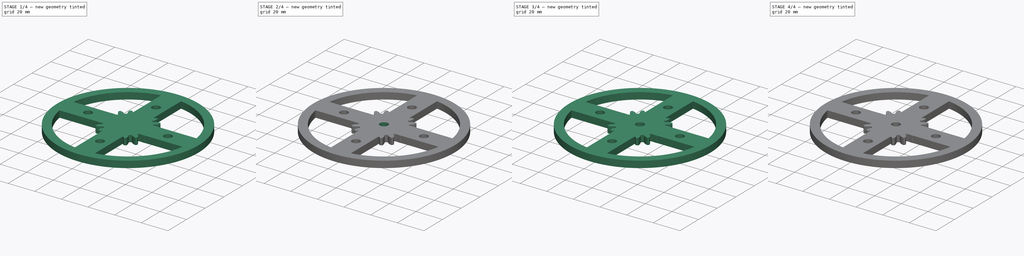
[diagram: build sequence overview — one tinted view per stage of 4, left to right]
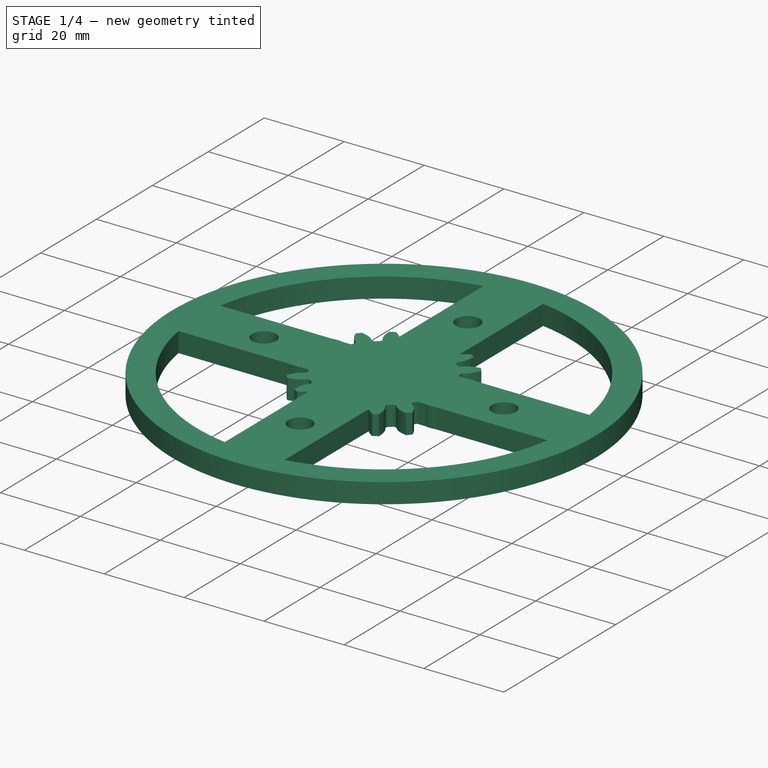
[diagram: stage 1 of 4 — iso view after this stage's code; geometry added in this stage tinted green]
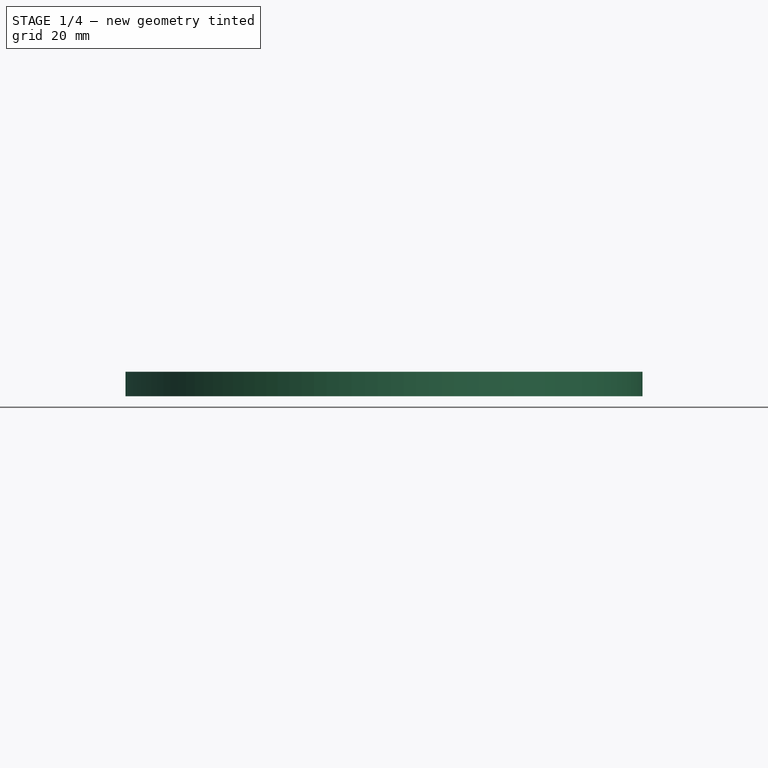
[diagram: stage 1 of 4 — front view after this stage's code; geometry added in this stage tinted green]
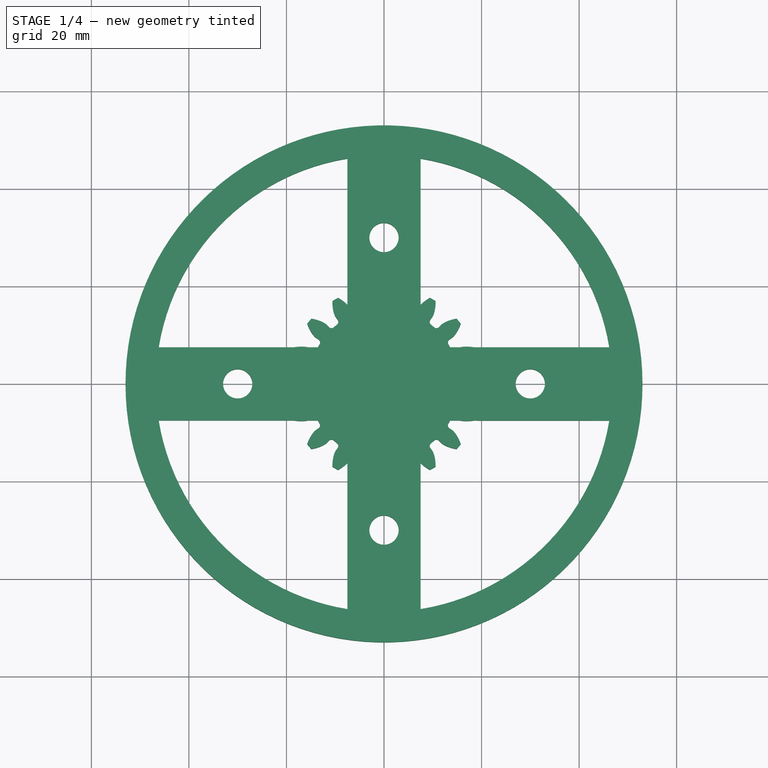
[diagram: stage 1 of 4 — top view after this stage's code; geometry added in this stage tinted green]
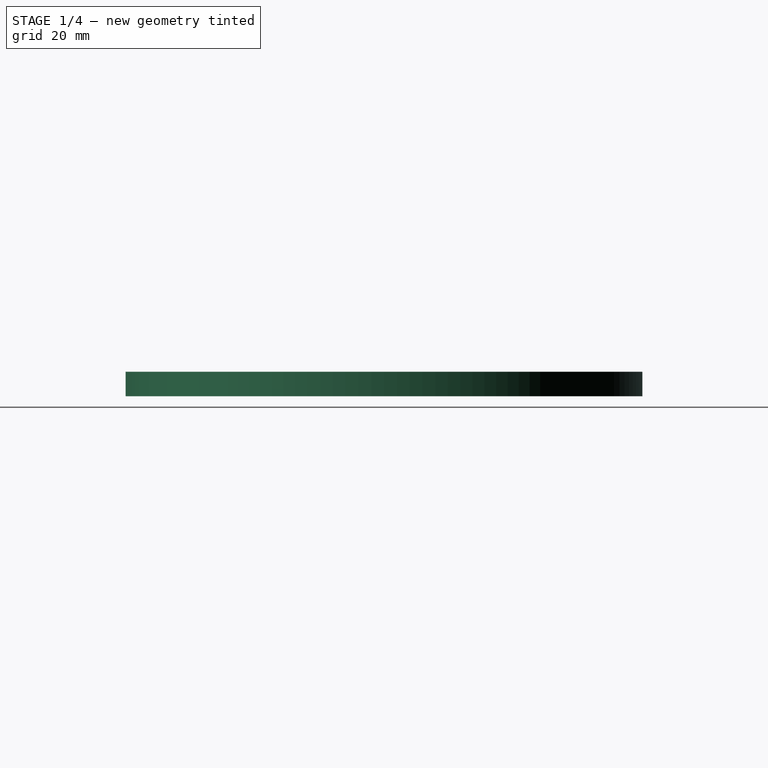
[diagram: stage 1 of 4 — right view after this stage's code; geometry added in this stage tinted green]
FCSTD DOCUMENT  (FreeCAD 0.20R29177 +426 (Git))
Label: Ensamble2
License: All rights reserved
LicenseURL: http://en.wikipedia.org/wiki/All_rights_reserved
objects: PartDesign::Body×8, Sketcher::SketchObject×8, PartDesign::Pad×7, Part::Part2DObjectPython×5, PartDesign::Pocket×5, PartDesign::FeaturePython×1
note: 46 computed .brp shape members not serialized (recipe doc carries the construction recipe); baked Part::Feature solids carry a one-line shape summary decoded from their .brp

FEATURE [PartDesign::Body] Body003  label="Planeta3"
  Group = -> [InvoluteGear003,Pad003,Sketch007,Pocket003]
  Origin = -> Origin004
  Placement = pos=(-30,0,0) rot=(0,0,-1;0.174533rad)
  Tip = -> Pocket003
FEATURE [PartDesign::Pad] Pad004
  Direction = (0,0,1)
  Length = 5
  Length2 = 10
  Profile = -> InvoluteGear004
  ReferenceAxis = -> InvoluteGear004 [N_Axis]
  Type = 0
FEATURE [PartDesign::Body] Body004  label="planeta4"
  Group = -> [InvoluteGear004,Pad004,Sketch008,Pocket004]
  Origin = -> Origin005
  Placement = pos=(30,0,0) rot=(0,0,1;0.174533rad)
  Tip = -> Pocket004
FEATURE [Sketcher::SketchObject] Sketch011
  FullyConstrained = false
  MapMode = 5
  Support = -> [XY_Plane006]
  sketch-geometry (21):
    g0: LineSegment StartX=0 StartY=0 StartZ=0 EndX=30 EndY=0 EndZ=0
    g1: Circle CenterX=30 CenterY=0 CenterZ=0 NormalX=0 NormalY=0 NormalZ=1 AngleXU=0 Radius=3
    g2: LineSegment StartX=0 StartY=0 StartZ=0 EndX=0 EndY=30 EndZ=0
    g3: LineSegment StartX=0 StartY=0 StartZ=0 EndX=-30 EndY=0 EndZ=0
    g4: LineSegment StartX=0 StartY=0 StartZ=0 EndX=0 EndY=-30 EndZ=0
    g5: Circle CenterX=-30 CenterY=0 CenterZ=0 NormalX=0 NormalY=0 NormalZ=1 AngleXU=0 Radius=3
    g6: Circle CenterX=0 CenterY=30 CenterZ=0 NormalX=0 NormalY=0 NormalZ=1 AngleXU=0 Radius=3
    g7: Circle CenterX=0 CenterY=-30 CenterZ=0 NormalX=0 NormalY=0 NormalZ=1 AngleXU=0 Radius=3
    g8: Circle CenterX=0 CenterY=0 CenterZ=0 NormalX=0 NormalY=0 NormalZ=1 AngleXU=0 Radius=6.25
    g9: ArcOfCircle CenterX=0 CenterY=-30 CenterZ=0 NormalX=0 NormalY=0 NormalZ=1 AngleXU=0 Radius=7.5 StartAngle=3.14159 EndAngle=6.28319
    g10: LineSegment StartX=-7.5 StartY=-7.5 StartZ=0 EndX=-7.5 EndY=-30 EndZ=0
    g11: LineSegment StartX=7.5 StartY=-30 StartZ=0 EndX=7.5 EndY=-7.5 EndZ=0
    g12: ArcOfCircle CenterX=30 CenterY=0 CenterZ=0 NormalX=0 NormalY=0 NormalZ=1 AngleXU=0 Radius=7.5 StartAngle=4.71239 EndAngle=7.85398
    g13: LineSegment StartX=7.5 StartY=-7.5 StartZ=0 EndX=30 EndY=-7.5 EndZ=0
    g14: LineSegment StartX=30 StartY=7.5 StartZ=0 EndX=7.5 EndY=7.5 EndZ=0
    g15: ArcOfCircle CenterX=0 CenterY=30 CenterZ=0 NormalX=0 NormalY=0 NormalZ=1 AngleXU=0 Radius=7.5 StartAngle=1e-16 EndAngle=3.14159
    g16: LineSegment StartX=7.5 StartY=7.5 StartZ=0 EndX=7.5 EndY=30 EndZ=0
    g17: LineSegment StartX=-7.5 StartY=30 StartZ=0 EndX=-7.5 EndY=7.5 EndZ=0
    g18: ArcOfCircle CenterX=-30 CenterY=0 CenterZ=0 NormalX=0 NormalY=0 NormalZ=1 AngleXU=0 Radius=7.5 StartAngle=1.5708 EndAngle=4.71239
    g19: LineSegment StartX=-7.5 StartY=7.5 StartZ=0 EndX=-30 EndY=7.5 EndZ=0
    g20: LineSegment StartX=-30 StartY=-7.5 StartZ=0 EndX=-7.5 EndY=-7.5 EndZ=0
  constraints (41):
    c: Coincident(g0,g-1)
    c: DistanceX(g0,g0) = 30
    c: Coincident(g1,g0)
    c: Diameter(g1) = 6
    c: Coincident(g2,g0)
    c: Coincident(g3,g0)
    c: Coincident(g4,g0)
    c: DistanceY(g2,g2) = 30
    c: DistanceX(g3,g3) = 30
    c: DistanceY(g4,g4) = 30
    c: Coincident(g5,g3)
    c: Diameter(g5) = 6
    c: Coincident(g6,g2)
    c: Diameter(g6) = 6
    c: Coincident(g7,g4)
    c: Diameter(g7) = 6
    c: Diameter(g8) = 12.5
    c: Tangent(g10,g9) = -1.5708
    c: Tangent(g9,g11) = -1.5708
    c: Coincident(g9,g7)
    c: Tangent(g13,g12) = -1.5708
    c: Tangent(g12,g14) = -1.5708
    c: Coincident(g12,g1)
    c: Tangent(g16,g15) = -1.5708
    c: Tangent(g15,g17) = -1.5708
    c: Coincident(g15,g6)
    c: Tangent(g19,g18) = -1.5708
    c: Tangent(g18,g20) = -1.5708
    c: Coincident(g18,g5)
    c: Symmetric(g12,g12,g-1)
    c: DistanceY(g12,g12) = 15
    c: Symmetric(g9,g9,g-2)
    c: DistanceX(g9,g9) = 15
    c: Symmetric(g18,g18,g-1)
    c: DistanceY(g18,g18) = 15
    c: Symmetric(g15,g15,g-2)
    c: DistanceX(g15,g15) = 15
    c: Coincident(g14,g16)
    c: Coincident(g17,g19)
    c: Coincident(g20,g10)
    c: Coincident(g13,g11)
FEATURE [PartDesign::Pad] Pad005
  Direction = (0,0,1)
  Length = 5
  Length2 = 10
  Profile = -> Sketch011
  ReferenceAxis = -> Sketch011 [N_Axis]
  Type = 0
FEATURE [PartDesign::Body] Body005  label="Eje Superior"
  Group = -> [Sketch011,Pad005]
  Origin = -> Origin006
  Placement = pos=(0,0,5) rot=(0,0,1;0rad)
  Tip = -> Pad005
FEATURE [Sketcher::SketchObject] Sketch012
  FullyConstrained = false
  MapMode = 5
  Support = -> [XY_Plane007]
  sketch-geometry (22):
    g0: Circle CenterX=0 CenterY=0 CenterZ=0 NormalX=0 NormalY=0 NormalZ=1 AngleXU=0 Radius=53
    g1: ArcOfCircle CenterX=0 CenterY=0 CenterZ=0 NormalX=0 NormalY=0 NormalZ=1 AngleXU=0 Radius=46.8 StartAngle=0.16058 EndAngle=1.40985
    g2: Circle CenterX=0 CenterY=0 CenterZ=0 NormalX=0 NormalY=0 NormalZ=1 AngleXU=0 Radius=6.25
    g3: LineSegment StartX=7.5 StartY=-46.1951 StartZ=0 EndX=7.5 EndY=-7.5 EndZ=0
    g4: LineSegment StartX=-7.5 StartY=-46.1951 StartZ=0 EndX=-7.5 EndY=-7.5 EndZ=0
    g5: LineSegment StartX=-46.1951 StartY=7.5 StartZ=0 EndX=-7.5 EndY=7.5 EndZ=0
    g6: LineSegment StartX=-46.1951 StartY=-7.5 StartZ=0 EndX=-7.5 EndY=-7.5 EndZ=0
    g7: LineSegment StartX=7.5 StartY=7.5 StartZ=0 EndX=7.5 EndY=46.1951 EndZ=0
    g8: LineSegment StartX=-7.5 StartY=7.5 StartZ=0 EndX=-7.5 EndY=46.1951 EndZ=0
    g9: LineSegment StartX=7.5 StartY=7.5 StartZ=0 EndX=46.1979 EndY=7.48287 EndZ=0
    g10: LineSegment StartX=7.5 StartY=-7.5 StartZ=0 EndX=46.1923 EndY=-7.51713 EndZ=0
    g11: LineSegment StartX=0 StartY=0 StartZ=0 EndX=30 EndY=0 EndZ=0
    g12: LineSegment StartX=0 StartY=0 StartZ=0 EndX=-30 EndY=0 EndZ=0
    g13: LineSegment StartX=0 StartY=0 StartZ=0 EndX=0 EndY=30 EndZ=0
    g14: LineSegment StartX=0 StartY=0 StartZ=0 EndX=0 EndY=-30 EndZ=0
    g15: Circle CenterX=30 CenterY=0 CenterZ=0 NormalX=0 NormalY=0 NormalZ=1 AngleXU=0 Radius=3
    g16: Circle CenterX=0 CenterY=30 CenterZ=0 NormalX=0 NormalY=0 NormalZ=1 AngleXU=0 Radius=3
    g17: Circle CenterX=-30 CenterY=0 CenterZ=0 NormalX=0 NormalY=0 NormalZ=1 AngleXU=0 Radius=3
    g18: Circle CenterX=0 CenterY=-30 CenterZ=0 NormalX=0 NormalY=0 NormalZ=1 AngleXU=0 Radius=3
    g19: ArcOfCircle CenterX=0 CenterY=0 CenterZ=0 NormalX=0 NormalY=0 NormalZ=1 AngleXU=0 Radius=46.8 StartAngle=3.30254 EndAngle=4.55144
    g20: ArcOfCircle CenterX=0 CenterY=0 CenterZ=0 NormalX=0 NormalY=0 NormalZ=1 AngleXU=0 Radius=46.8 StartAngle=4.87334 EndAngle=6.12186
    g21: ArcOfCircle CenterX=0 CenterY=0 CenterZ=0 NormalX=0 NormalY=0 NormalZ=1 AngleXU=0 Radius=46.8 StartAngle=1.73175 EndAngle=2.98064
  constraints (53):
    c: Coincident(g0,g-1)
    c: Diameter(g0) = 106
    c: Coincident(g1,g0)
    c: Diameter(g1) = 93.6
    c: Coincident(g2,g0)
    c: Diameter(g2) = 12.5
    c: PointOnObject(g3,g1)
    c: Horizontal(g5)
    c: DistanceY(g10,g9) = 15
    c: Symmetric(g7,g8,g-2)
    c: DistanceX(g8,g7) = 15
    c: Symmetric(g3,g4,g-2)
    c: DistanceX(g4,g3) = 15
    c: Coincident(g5,g8)
    c: Coincident(g9,g7)
    c: Coincident(g6,g4)
    c: Coincident(g10,g3)
    c: Coincident(g11,g0)
    c: PointOnObject(g11,g-1)
    c: DistanceX(g11,g11) = 30
    c: Coincident(g12,g0)
    c: PointOnObject(g12,g-1)
    c: DistanceX(g12,g12) = 30
    c: Coincident(g13,g0)
    c: PointOnObject(g13,g-2)
    c: DistanceY(g13,g13) = 30
    c: Coincident(g14,g0)
    c: PointOnObject(g14,g-2)
    c: DistanceY(g14,g14) = 30
    c: Coincident(g15,g11)
    c: Diameter(g15) = 6
    c: Coincident(g16,g13)
    c: Diameter(g16) = 6
    c: Coincident(g17,g12)
    c: Diameter(g17) = 6
    c: Coincident(g18,g14)
    c: Diameter(g18) = 6
    c: Symmetric(g5,g6,g-1)
    c: DistanceY(g6,g5) = 15
    c: Coincident(g20,g10)
    c: Coincident(g1,g9)
    c: Equal(g1,g19)
    c: Coincident(g21,g5)
    c: PointOnObject(g19,g6)
    c: Coincident(g1,g19)
    c: Equal(g19,g20)
    c: PointOnObject(g19,g4)
    c: PointOnObject(g20,g3)
    c: Coincident(g19,g20)
    c: Equal(g1,g21)
    c: Coincident(g1,g7)
    c: PointOnObject(g21,g8)
    c: Coincident(g1,g21)
FEATURE [PartDesign::Pad] Pad006
  Direction = (0,0,1)
  Length = 5
  Length2 = 10
  Profile = -> Sketch012
  ReferenceAxis = -> Sketch012 [N_Axis]
  Type = 0
FEATURE [PartDesign::Body] Body006  label="Eje Inferior"
  Group = -> [Sketch012,Pad006]
  Origin = -> Origin007
  Placement = pos=(0,0,-5) rot=(0,0,1;0rad)
  Tip = -> Pad006
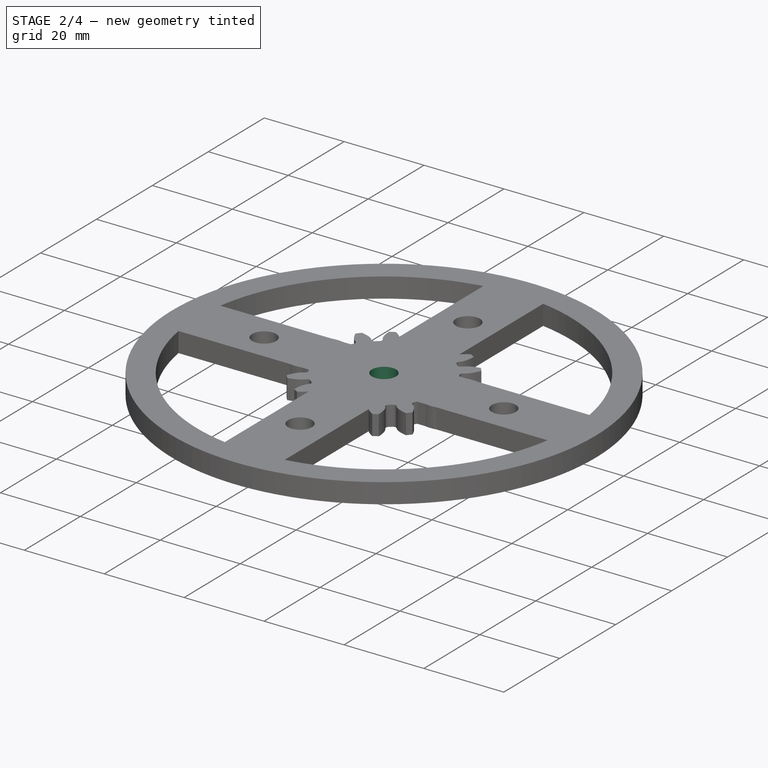
[diagram: stage 2 of 4 — iso view after this stage's code; geometry added in this stage tinted green]
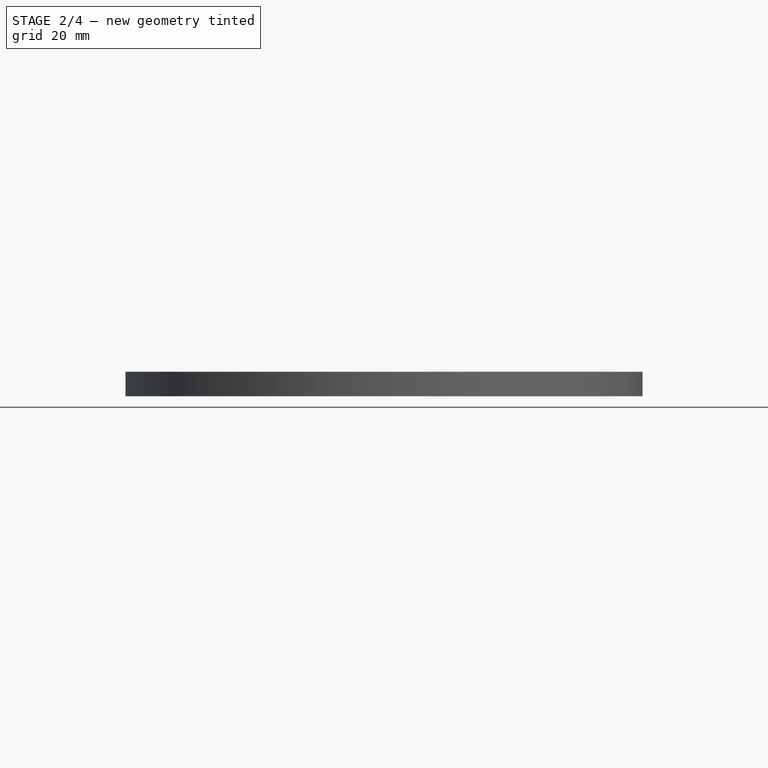
[diagram: stage 2 of 4 — front view after this stage's code; geometry added in this stage tinted green]
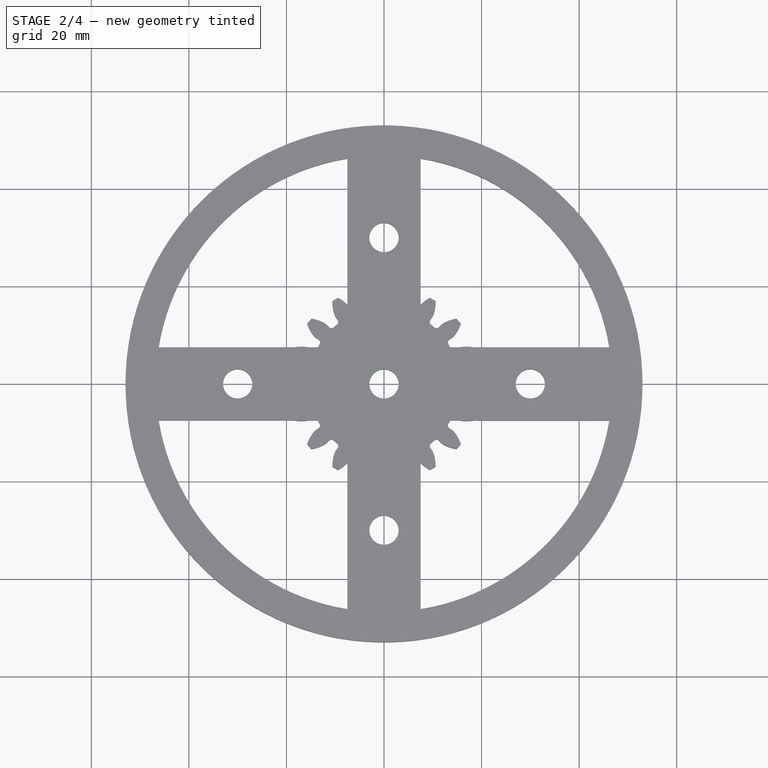
[diagram: stage 2 of 4 — top view after this stage's code; geometry added in this stage tinted green]
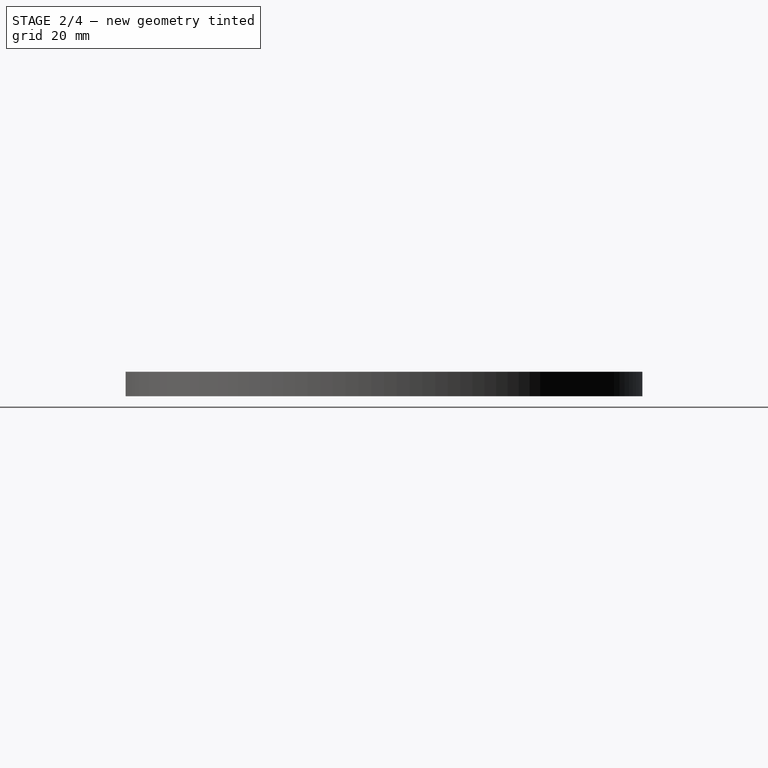
[diagram: stage 2 of 4 — right view after this stage's code; geometry added in this stage tinted green]
FEATURE [PartDesign::Body] Body001  label="planeta1"
  Group = -> [InvoluteGear001,Pad002,Sketch006,Pocket002]
  Origin = -> Origin002
  Placement = pos=(0,30,0) rot=(0,0,1;0rad)
  Tip = -> Pocket002
FEATURE [PartDesign::Pad] Pad003
  Direction = (0,0,1)
  Length = 5
  Length2 = 10
  Profile = -> InvoluteGear003
  ReferenceAxis = -> InvoluteGear003 [N_Axis]
  Type = 0
FEATURE [Sketcher::SketchObject] Sketch007
  FullyConstrained = true
  MapMode = 5
  Placement = pos=(0,0,5) rot=(0,0,1;0rad)
  Support = -> [Pad003]
  sketch-geometry (1):
    g0: Circle CenterX=0 CenterY=0 CenterZ=0 NormalX=0 NormalY=0 NormalZ=1 AngleXU=0 Radius=3
  constraints (2):
    c: Coincident(g0,g-1)
    c: Diameter(g0) = 6
FEATURE [PartDesign::Pocket] Pocket003
  BaseFeature = -> Pad003
  Direction = (0,0,-1)
  Length = 5
  Length2 = 5
  Profile = -> Sketch007
  ReferenceAxis = -> Sketch007 [N_Axis]
  Type = 1
FEATURE [Sketcher::SketchObject] Sketch008
  FullyConstrained = true
  MapMode = 5
  Placement = pos=(0,0,5) rot=(0,0,1;0rad)
  Support = -> [Pad004]
  sketch-geometry (1):
    g0: Circle CenterX=0 CenterY=0 CenterZ=0 NormalX=0 NormalY=0 NormalZ=1 AngleXU=0 Radius=3
  constraints (2):
    c: Coincident(g0,g-1)
    c: Diameter(g0) = 6
FEATURE [PartDesign::Pocket] Pocket004
  BaseFeature = -> Pad004
  Direction = (0,0,-1)
  Length = 5
  Length2 = 5
  Profile = -> Sketch008
  ReferenceAxis = -> Sketch008 [N_Axis]
  Type = 1
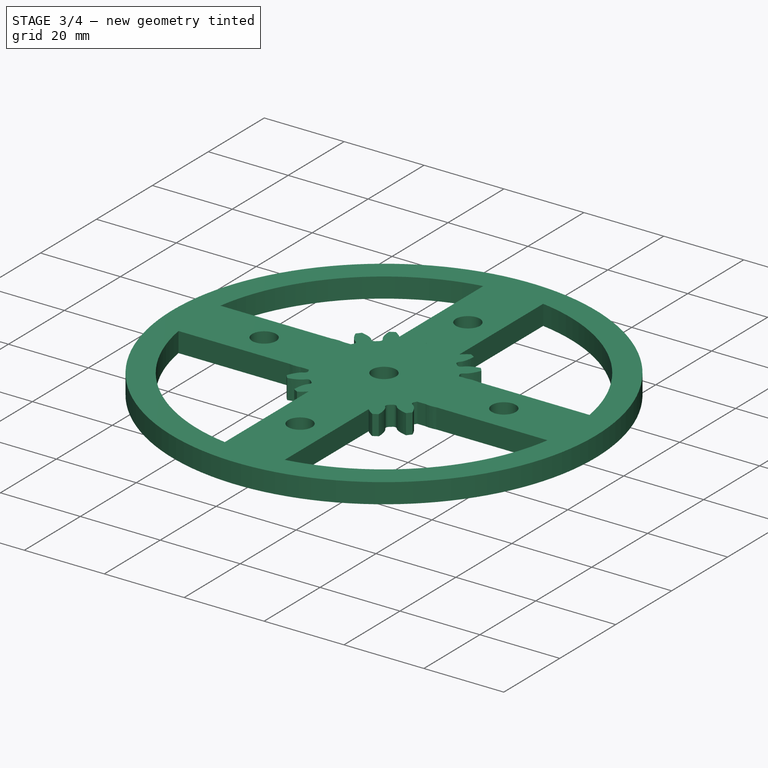
[diagram: stage 3 of 4 — iso view after this stage's code; geometry added in this stage tinted green]
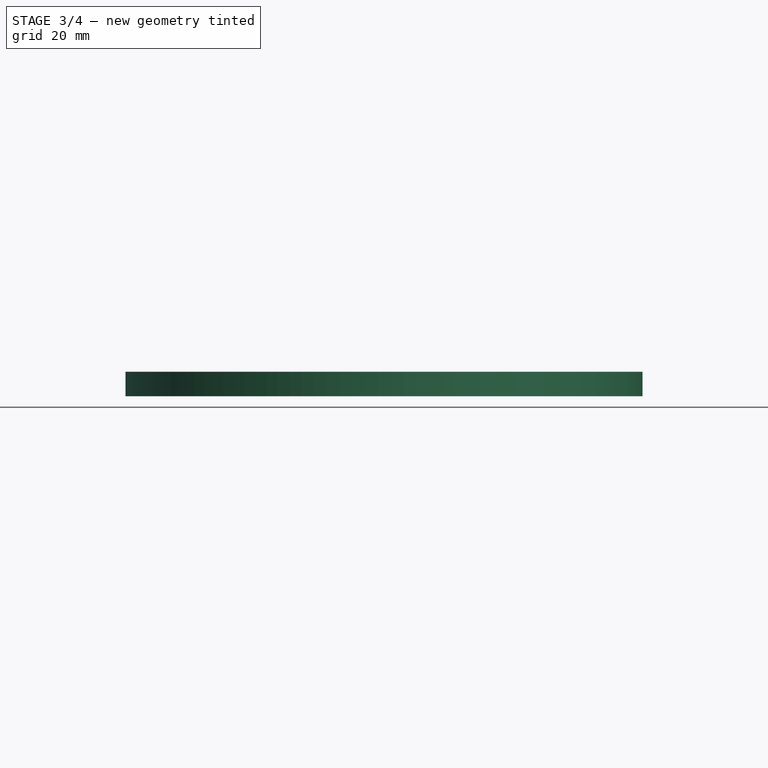
[diagram: stage 3 of 4 — front view after this stage's code; geometry added in this stage tinted green]
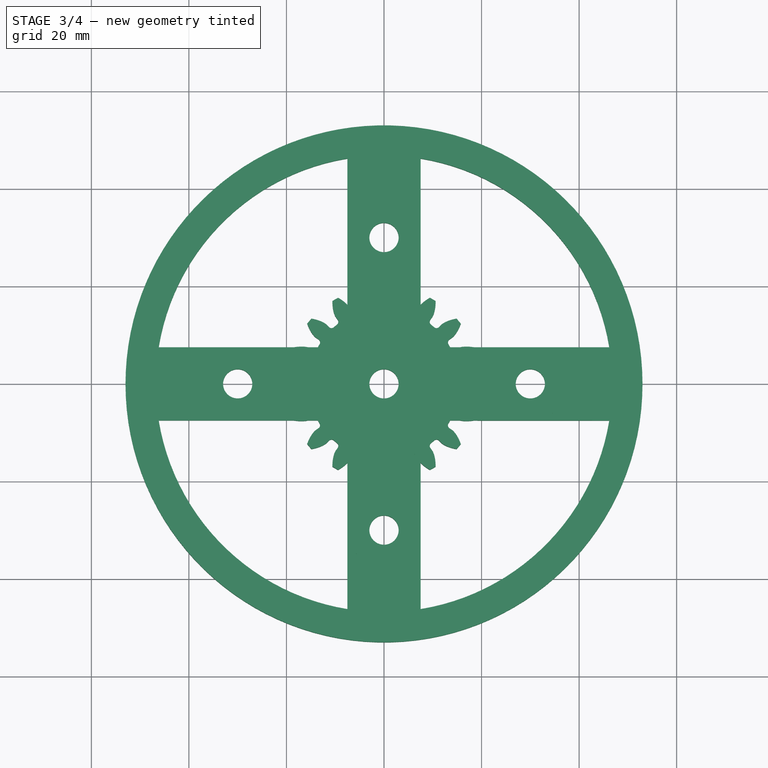
[diagram: stage 3 of 4 — top view after this stage's code; geometry added in this stage tinted green]
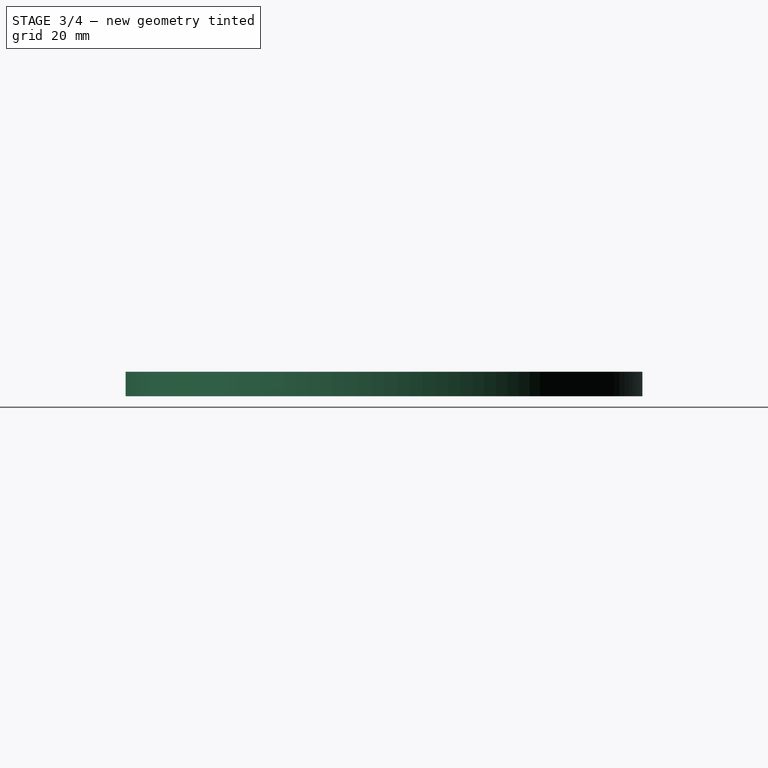
[diagram: stage 3 of 4 — right view after this stage's code; geometry added in this stage tinted green]
FEATURE [PartDesign::Body] Body_2  label="sol"
  Group = -> [InvoluteGear,Pad,Sketch,Pocket]
  Origin = -> Origin001
  Tip = -> Pocket
FEATURE [Part::Part2DObjectPython] InvoluteGear001 .. InvoluteGear004  x4 (patterned run collapsed; names and placements below)
  ExternalGear = true
  HighPrecision = true
  Modules = 2
  NumberOfTeeth = 18
  PressureAngle = 20
FEATURE [Sketcher::SketchObject] Sketch004
  FullyConstrained = true
  MapMode = 5
  Support = -> [XY_Plane003]
  sketch-geometry (1):
    g0: Circle CenterX=0 CenterY=0 CenterZ=0 NormalX=0 NormalY=0 NormalZ=1 AngleXU=0 Radius=3
  constraints (2):
    c: Coincident(g0,g-1)
    c: Diameter(g0) = 6
FEATURE [PartDesign::Pad] Pad001
  Direction = (0,0,1)
  Length = 5
  Length2 = 10
  Profile = -> InvoluteGear002
  ReferenceAxis = -> InvoluteGear002 [N_Axis]
  Type = 0
FEATURE [Sketcher::SketchObject] Sketch005
  FullyConstrained = true
  MapMode = 5
  Placement = pos=(0,0,5) rot=(0,0,1;0rad)
  Support = -> [Pad001]
  sketch-geometry (1):
    g0: Circle CenterX=0 CenterY=0 CenterZ=0 NormalX=0 NormalY=0 NormalZ=1 AngleXU=0 Radius=3
  constraints (2):
    c: Coincident(g0,g-1)
    c: Diameter(g0) = 6
FEATURE [PartDesign::Pocket] Pocket001
  BaseFeature = -> Pad001
  Direction = (0,0,-1)
  Length = 5
  Length2 = 5
  Profile = -> Sketch005
  ReferenceAxis = -> Sketch005 [N_Axis]
  Type = 1
FEATURE [PartDesign::Body] Body002  label="planeta2"
  Group = -> [InvoluteGear002,Sketch004,Pad001,Sketch005,Pocket001]
  Origin = -> Origin003
  Placement = pos=(0,-30,0) rot=(0,0,1;0rad)
  Tip = -> Pocket001
FEATURE [PartDesign::Pad] Pad002
  Direction = (0,0,1)
  Length = 5
  Length2 = 10
  Profile = -> InvoluteGear001
  ReferenceAxis = -> InvoluteGear001 [N_Axis]
  Type = 0
FEATURE [Sketcher::SketchObject] Sketch006
  FullyConstrained = true
  MapMode = 5
  Placement = pos=(0,0,5) rot=(0,0,1;0rad)
  Support = -> [Pad002]
  sketch-geometry (1):
    g0: Circle CenterX=0 CenterY=0 CenterZ=0 NormalX=0 NormalY=0 NormalZ=1 AngleXU=0 Radius=3
  constraints (2):
    c: Coincident(g0,g-1)
    c: Diameter(g0) = 6
FEATURE [PartDesign::Pocket] Pocket002
  BaseFeature = -> Pad002
  Direction = (0,0,-1)
  Length = 5
  Length2 = 5
  Profile = -> Sketch006
  ReferenceAxis = -> Sketch006 [N_Axis]
  Type = 1
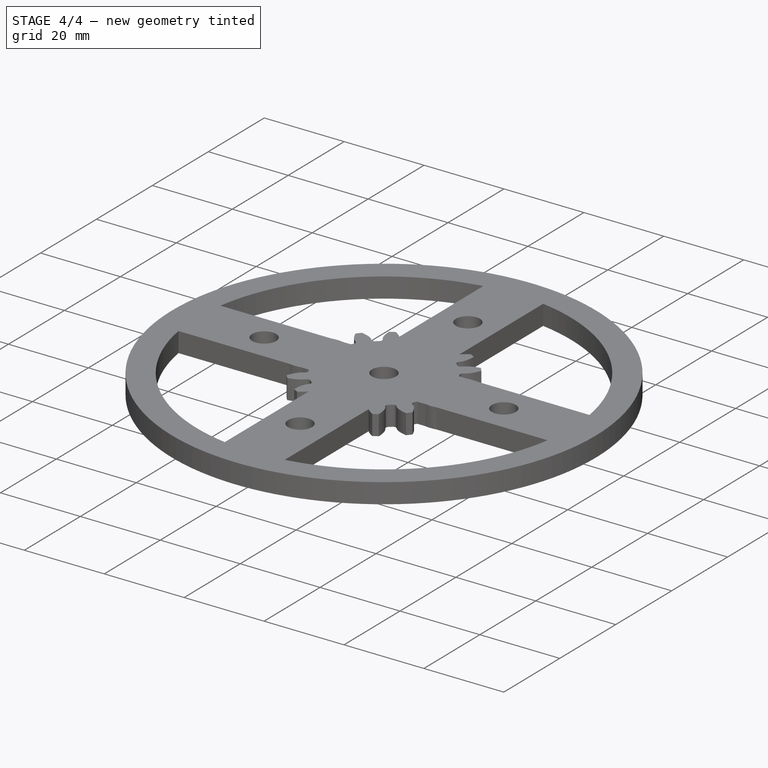
[diagram: stage 4 of 4 — iso view after this stage's code; geometry added in this stage tinted green]
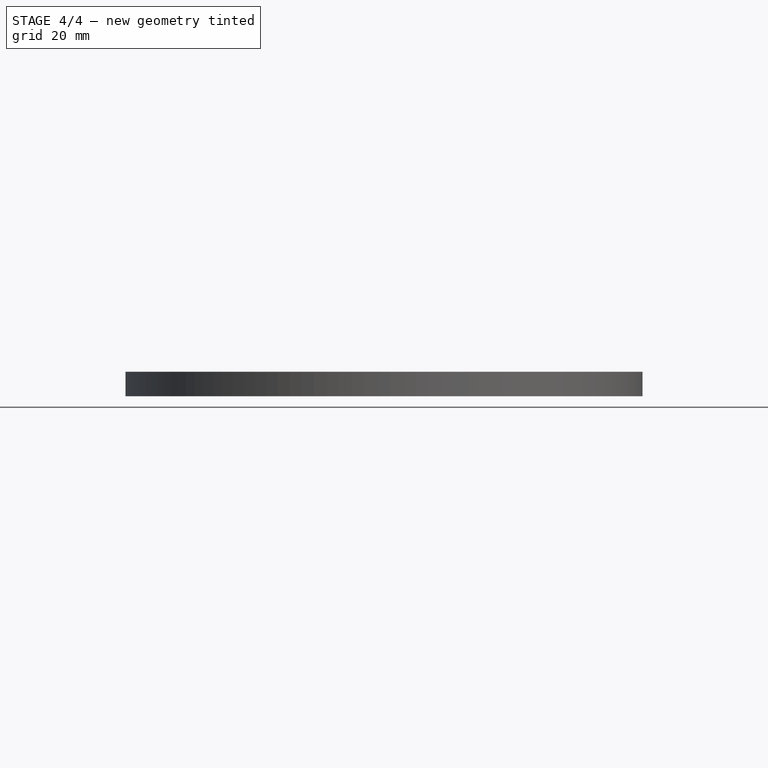
[diagram: stage 4 of 4 — front view after this stage's code; geometry added in this stage tinted green]
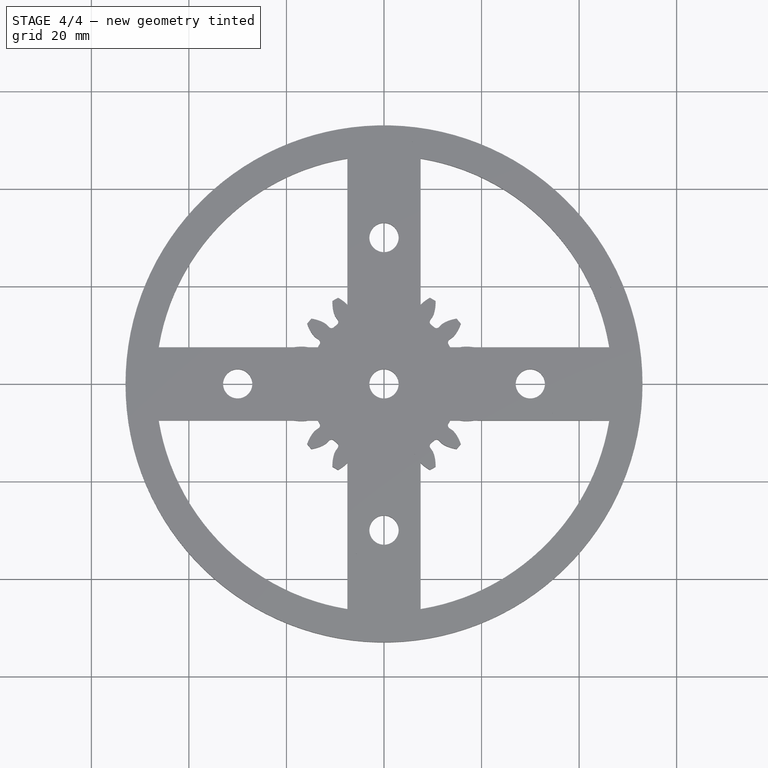
[diagram: stage 4 of 4 — top view after this stage's code; geometry added in this stage tinted green]
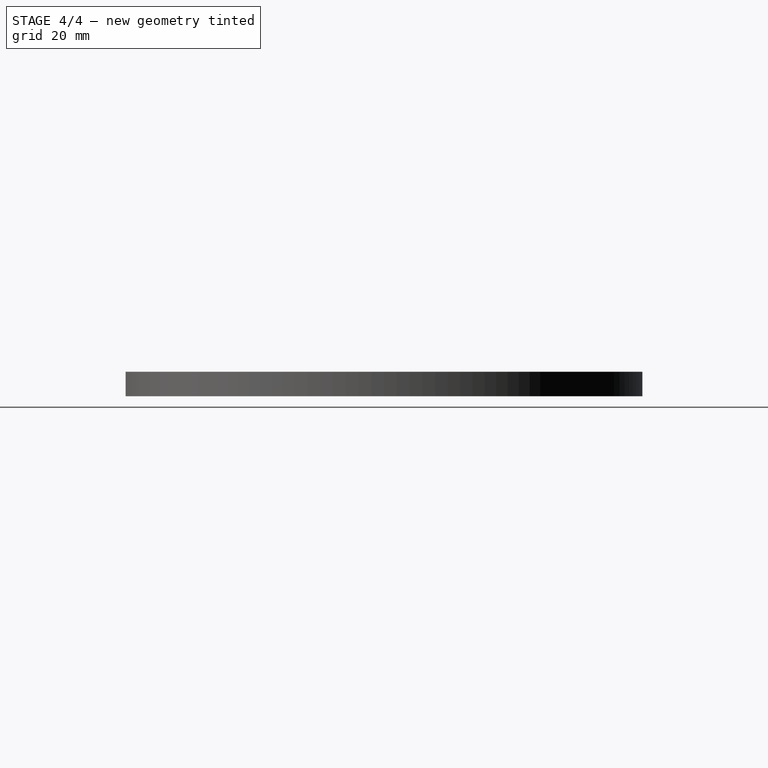
[diagram: stage 4 of 4 — right view after this stage's code; geometry added in this stage tinted green]
FEATURE [PartDesign::FeaturePython] InternalInvoluteGear  # WARN: FeaturePython — macro-defined, semantics opaque (R4)
  AttacherType = Attacher::AttachEngine3D
  angular_backlash = 0
  backlash = 0
  beta = 0
  clearance = 0.25
  da = 93.6
  df = 101
  double_helix = false
  dw = 96
  head = -0.4
  head_fillet = 0
  height = 5
  module = 2
  numpoints = 6
  outside_diameter = 106
  pressure_angle = 20
  properties_from_tool = false
  reversed_backlash = false
  root_fillet = 0
  shift = 0
  simple = false
  teeth = 48
  thickness = 5
  transverse_pitch = 6.28319
  version = 0.0.4
  expr: angular_backlash = backlash / dw * 360° / pi
FEATURE [PartDesign::Body] Body  label="anillo"
  Group = -> [InternalInvoluteGear]
  Origin = -> Origin
  Placement = pos=(0,0,0) rot=(0,0,1;0.064577rad)
  Tip = -> InternalInvoluteGear
FEATURE [Part::Part2DObjectPython] InvoluteGear  # Draft 2D object (typed FeaturePython)
  ExternalGear = true
  HighPrecision = true
  Modules = 2
  NumberOfTeeth = 12
  PressureAngle = 20
FEATURE [PartDesign::Pad] Pad
  Direction = (0,0,1)
  Length = 5
  Length2 = 10
  Profile = -> InvoluteGear
  ReferenceAxis = -> InvoluteGear [N_Axis]
  Type = 0
FEATURE [Sketcher::SketchObject] Sketch
  FullyConstrained = true
  MapMode = 5
  Placement = pos=(0,0,5) rot=(0,0,1;0rad)
  Support = -> [Pad]
  sketch-geometry (1):
    g0: Circle CenterX=0 CenterY=0 CenterZ=0 NormalX=0 NormalY=0 NormalZ=1 AngleXU=0 Radius=6.25
  constraints (2):
    c: Coincident(g0,g-1)
    c: Diameter(g0) = 12.5
FEATURE [PartDesign::Pocket] Pocket
  BaseFeature = -> Pad
  Direction = (0,0,-1)
  Length = 5
  Length2 = 5
  Profile = -> Sketch
  ReferenceAxis = -> Sketch [N_Axis]
  Type = 1
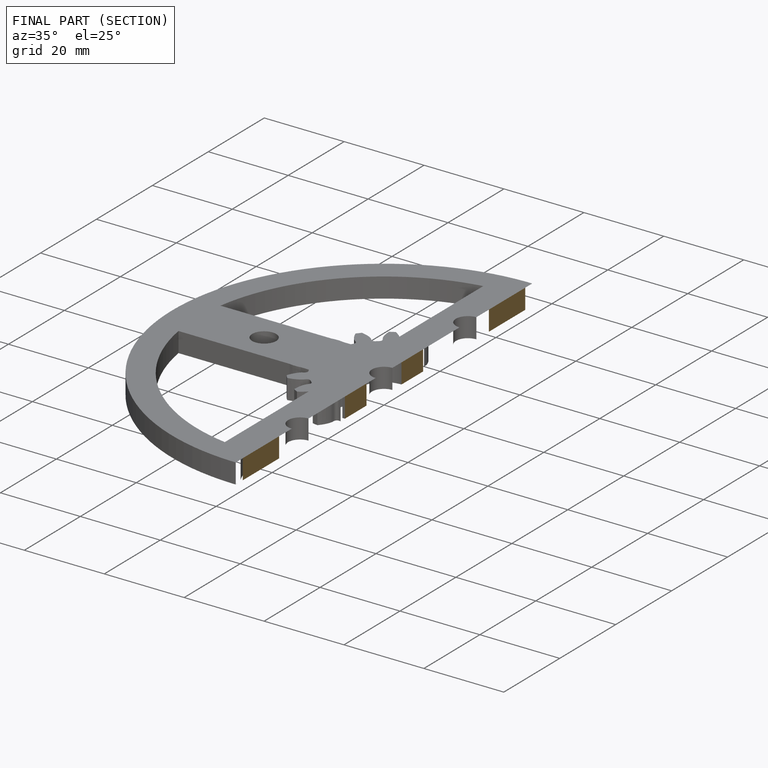
[diagram: finished part — half-section view (interior)]
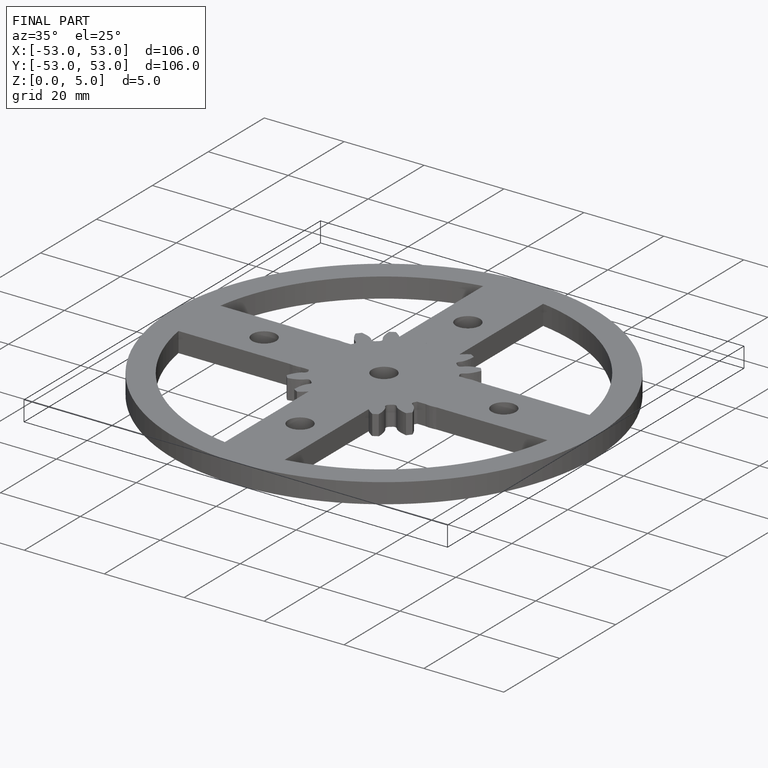
[diagram: finished part — iso view with bounding-box wireframe]
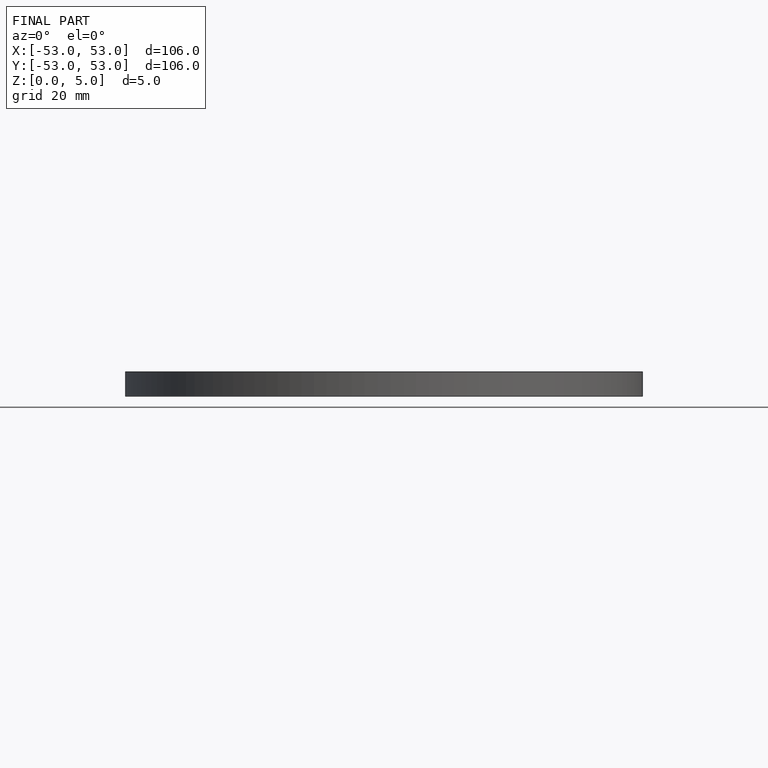
[diagram: finished part — front view with bounding-box wireframe]
